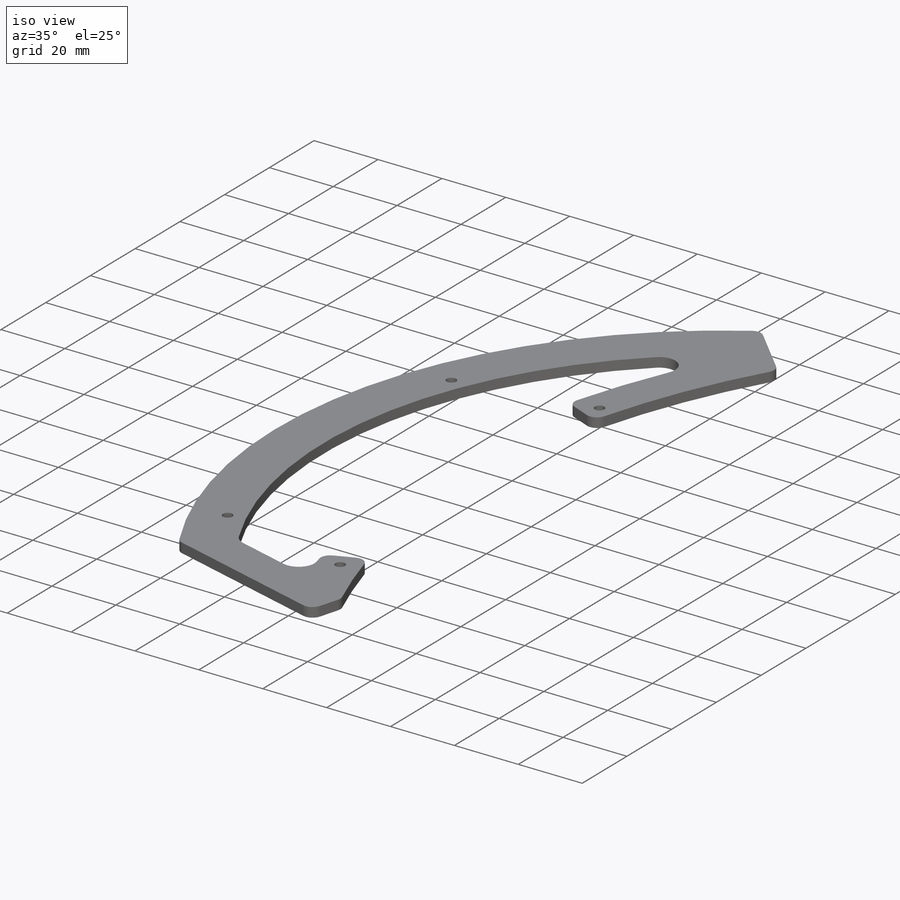
[diagram: iso view]
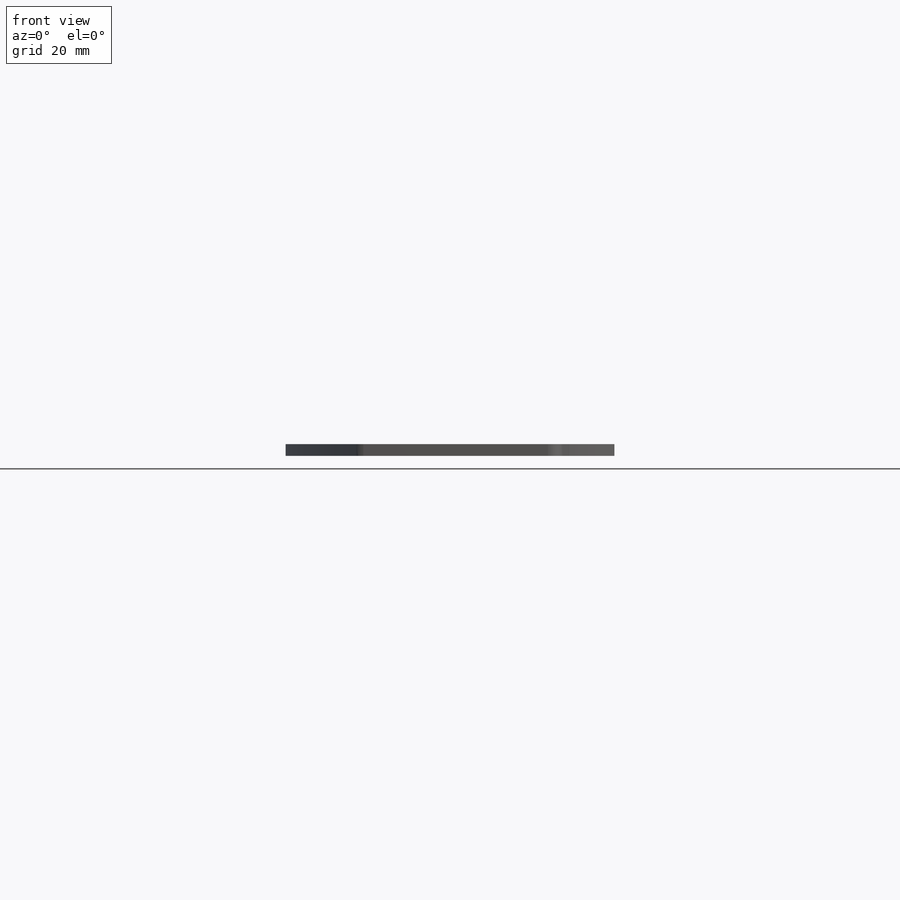
[diagram: front view]
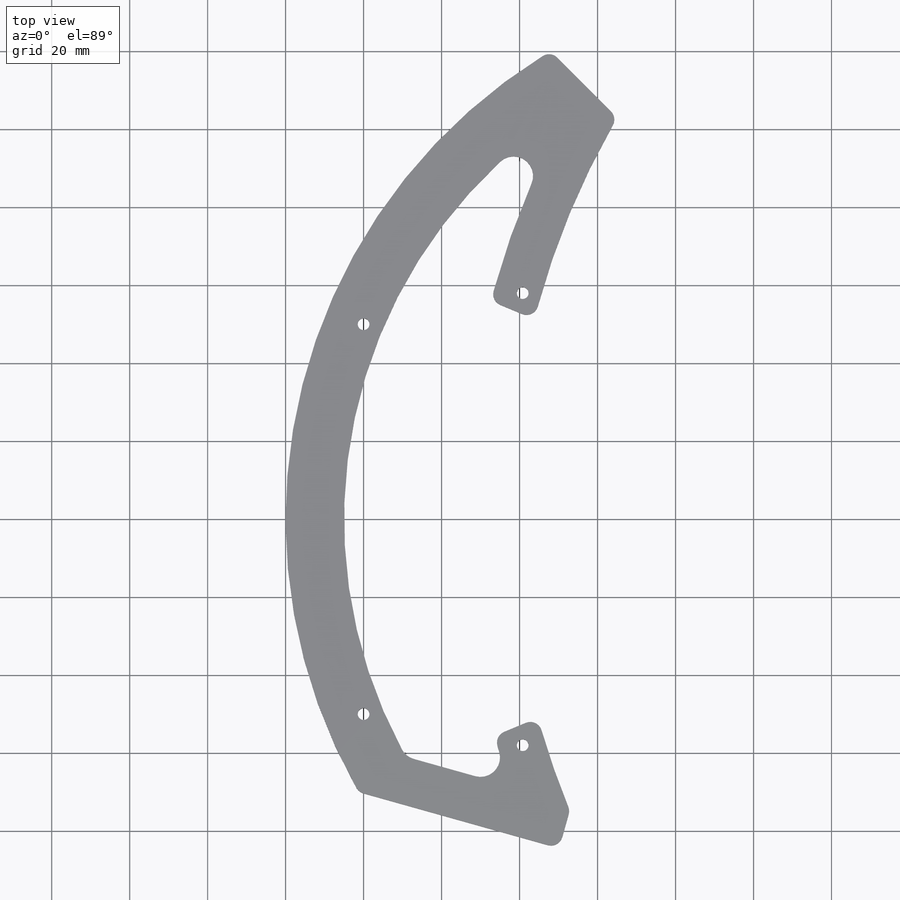
[diagram: top view]
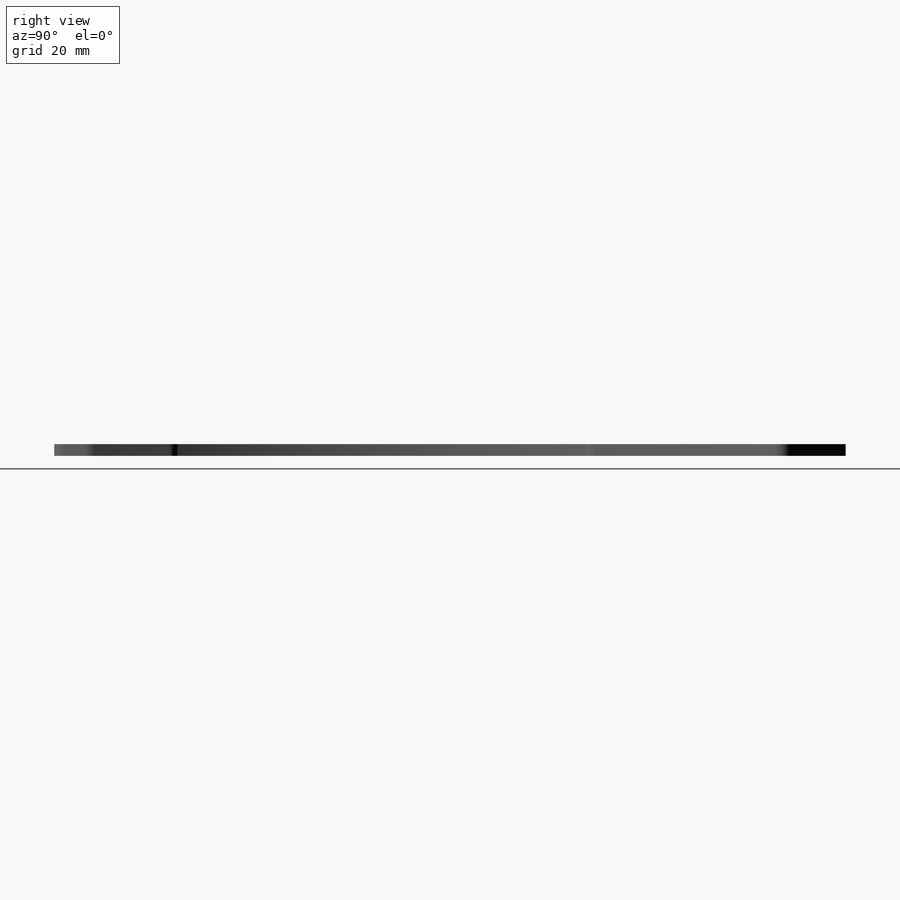
[diagram: right view]
SOLIDWORKS PART (.sldprt)
format: sldprt  version: not decoded by parser v0  size: 378,880 bytes
history: native  units: mm
features: sketch x7, cut_extrude x6, fillet x3, material x1, extrude x1 (+11 scaffold rows collapsed)
feature tree (29):
  scaffold x11  (default folders/planes/origin — collapsed)
  material  "1060 Alloy"
  sketch  "Sketch1"  dims[D1=280.0mm]
  extrude  "Boss-Extrude1"  Depth=3mm
  sketch  "Sketch17"  dims[D1=90.0mm D2=50.0mm D3=50.0mm D4=70.0mm]
  cut_extrude  "Cut-Extrude1"  [1 undecoded]
  sketch  "Sketch19"  dims[c1.D5=3.0mm c1.D3=3.0mm c1.D1=154.15mm c1.D2=111.72mm c2.D3=55.86mm c2.D4=77.075mm c2.D6=~95.188735mm c3.D3=55.86mm c3.D6=97.0mm c3.D1=15.0mm c3.D2=15.0mm]
  cut_extrude  "Cut-Extrude3"  [1 undecoded]
  sketch  "Sketch25"  dims[c1.D1=3.0mm c1.D2=50.0mm c1.D3=~132.925205mm c2.D2=50.0mm c2.D3=50.0mm c2.D4=120.0mm]
  cut_extrude  "Cut-Extrude10"  [1 undecoded]
  sketch  "Sketch20"  dims[c1.D1=25.0mm c1.D2=100.0mm c1.D3=50.0mm c1.D4=~36.040204mm c2.D4=45.0deg c2.D5=150.0mm c3.D5=45.0deg c3.D1=144.0mm]
  cut_extrude  "Cut-Extrude4"  [1 undecoded]
  fillet  "Fillet2"  Radius=10mm
  sketch  "Sketch23"  dims[c1.D1=3.0mm c1.D2=3.0mm c1.D3=200.0mm c2.D1=20.0mm c2.D2=20.0mm c2.D3=~169.474095mm c3.D2=20.0mm c3.D4=~20.303954mm c4.D4=90.0deg c4.D5=10.0mm c4.D1=103.0mm]
  cut_extrude  "Cut-Extrude8"  [1 undecoded]
  sketch  "Sketch24"  dims[c1.D2=3.0mm c1.D3=200.0mm c1.D4=~213.921326mm c1.D5=~134.361115mm c1.D1=~209.873712mm c2.D2=10.0mm c2.D3=~7.593439mm c2.D1=3.0mm c2.D4=~212.872463mm c2.D5=~214.241933mm c3.D1=5.0mm c3.D2=5.0mm c3.D3=20.0mm c3.D4=120.0mm c4.D3=12.0mm c4.D4=12.0mm c4.D5=12.0mm c4.D6=5.0mm c4.D7=10.0mm c4.D1=5.0mm c5.D3=5.0mm c5.D4=12.0mm c5.D5=12.0mm c5.D6=12.0mm]
  cut_extrude  "Cut-Extrude9"  [1 undecoded]
  fillet  "Fillet4"  Radius=5mm
  fillet  "Fillet5"  Radius=3mm
decode coverage: 11 of 17 modeling features carry decoded parameters
note: ~ marks probable driven/reference dimensions
note: 6 parameter values undecoded
summary: no parameter record found for 6 features
note: suppression state not decoded; provenance and decode notes live in map.json
